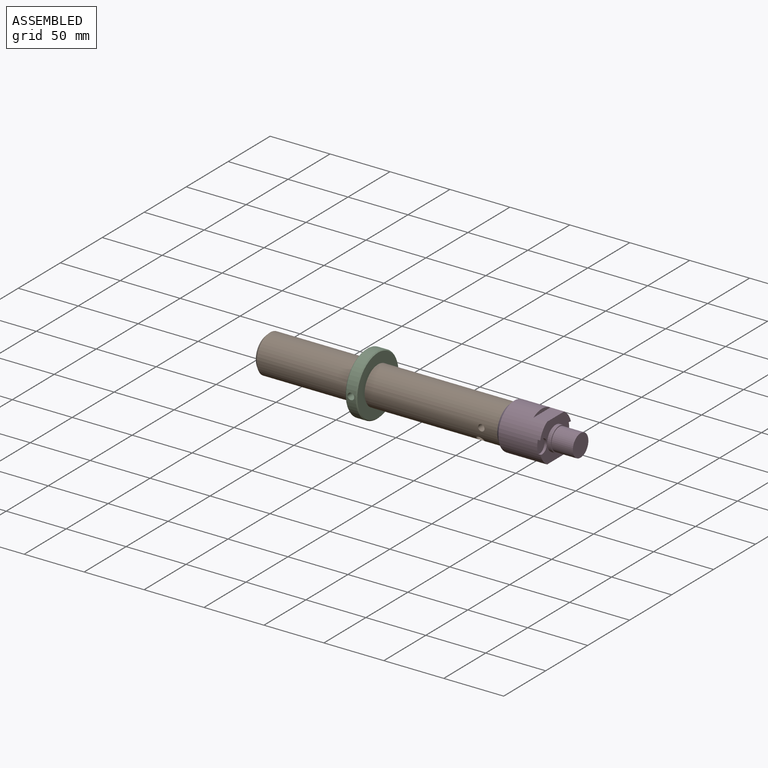
[diagram: assembled view]
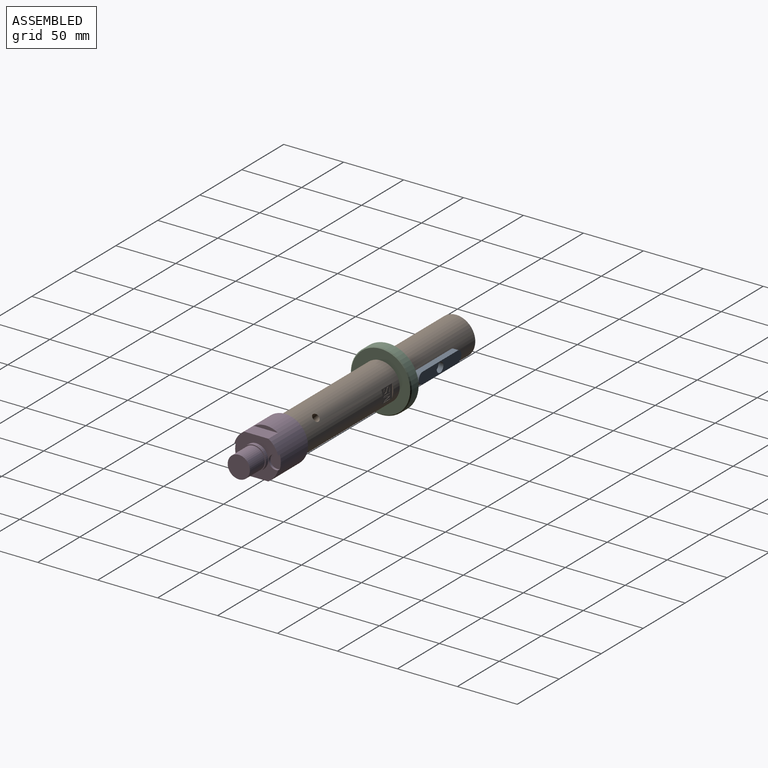
[diagram: assembled view, second angle]
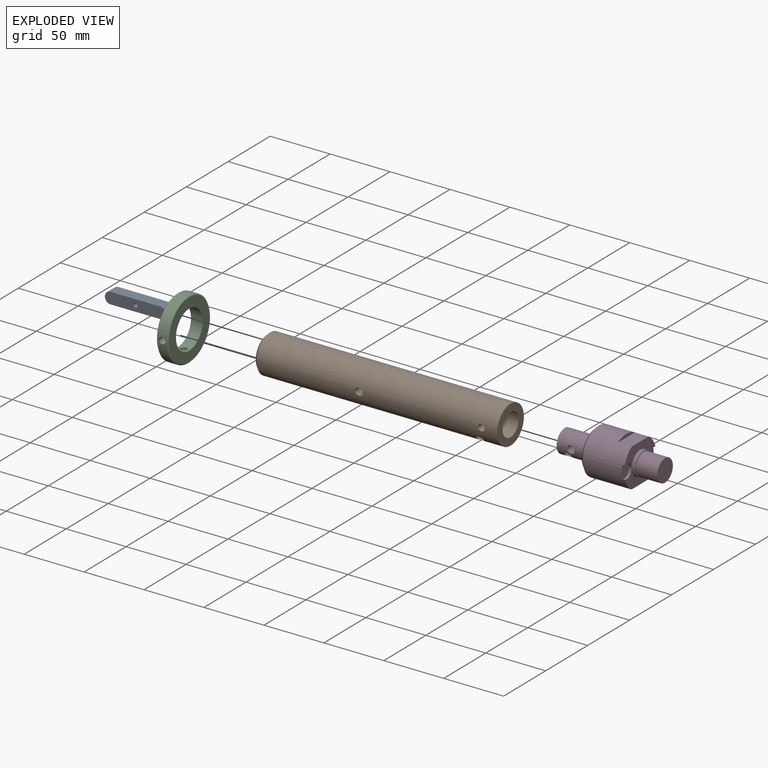
[diagram: exploded view]
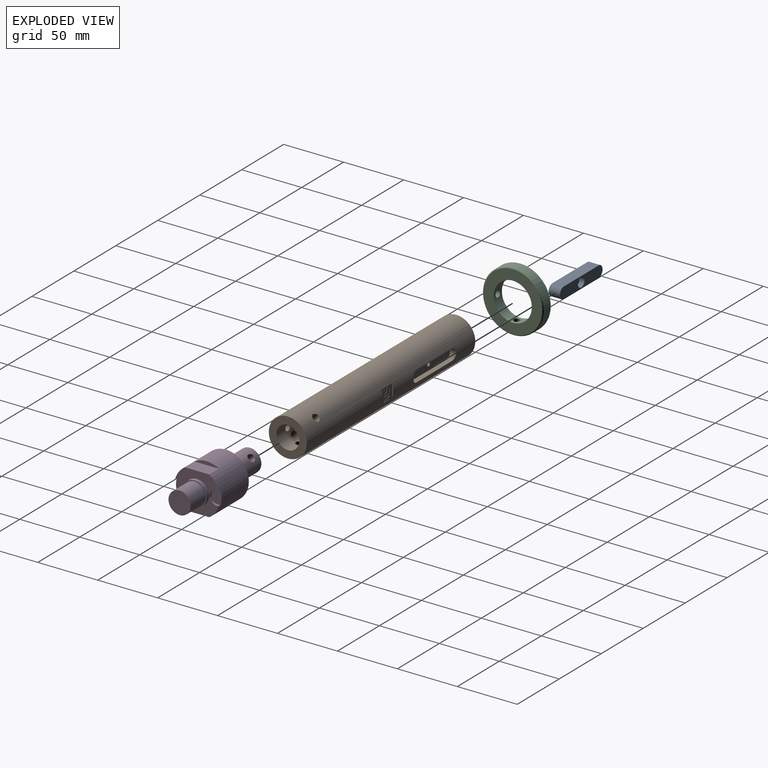
[diagram: exploded view, second angle]
ASSEMBLY  parts=4 mates=4
PART A: 9 faces, bbox 50.8x9.5x9.5 mm
  f0: plane 42.57x9.49mm, normal (0,1,0), area 403.8mm2, adj f1,f3,f4,f5
  f1: cylinder r=4.78mm len=9.49mm, axis (0,0,-1), area 129.9mm2, adj f0,f2,f4,f5
  f2: plane 42.57x9.49mm, normal (0,-1,0), area 403.8mm2, adj f1,f3,f4,f5
  f3: cylinder r=4.78mm len=9.49mm, axis (0,0,-1), area 129.9mm2, adj f0,f2,f4,f5
  f4: plane 50.8x9.47mm, normal (0,0,1), area 453.1mm2, adj f0,f1,f2,f3,f6
  f5: plane 50.8x9.47mm, normal (0,0,-1), area 413mm2, adj f0,f1,f2,f3,f8
  f6: cylinder r=1.73mm len=5.32mm, axis (0,0,-1), area 57.7mm2, adj f4,f7
  f7: plane 7.94x7.94mm, normal (0,0,-1), area 40.1mm2, adj f6,f8
  f8: cylinder r=3.97mm len=7.94mm, axis (0,0,-1), area 103.9mm2, adj f5,f7
PART B: 64 faces, bbox 203.2x31.8x31.8 mm
  f0: cylinder r=15.88mm len=200.66mm, axis (-1,0,0), area 19227.2mm2, adj f2,f3,f5,f6,f7,f8,f11,f12
  f1: cylinder r=9.53mm len=25.4mm, axis (1,0,0), area 1409.6mm2, adj f3,f10,f54,f55,f60,f61
  f2: plane 12.7x11.18mm, normal (0,1,0), area 105.7mm2, adj f0,f11,f12,f13,f14,f15,f16,f17
  f3: plane 31.75x31.75mm, normal (1,0,0), area 506.7mm2, adj f0,f1
  f4: plane 26.67x26.67mm, normal (-1,0,0), area 558.6mm2, adj f53
  f5: plane 42.57x4.36mm, normal (0,0,-1), area 185.5mm2, adj f0,f6,f8,f9
  f6: cylinder r=4.78mm len=9.47mm, axis (0,1,0), area 65mm2, adj f0,f5,f7,f9
  f7: plane 42.57x4.36mm, normal (0,0,1), area 185.5mm2, adj f0,f6,f8,f9
  f8: cylinder r=4.78mm len=9.47mm, axis (0,1,0), area 65mm2, adj f0,f5,f7,f9
  f9: plane 50.8x9.47mm, normal (0,1,0), area 453.1mm2, adj f5,f6,f7,f8,f63
  f10: plane 19.05x19.05mm, normal (1,0,0), area 285mm2, adj f1
  f11: plane 11.18x1.02mm, normal (-1,0,0), area 7.6mm2, adj f0,f2
  f12: plane 11.18x1.02mm, normal (1,0,0), area 7.6mm2, adj f0,f2
  f13: plane 0.92x0.25mm, normal (0,0,1), area 0.2mm2, adj f2,f14,f32,f33
  f14: extruded ~2.14x0.36mm, area 0.6mm2, adj f2,f13,f15,f33
  f15: extruded ~2.03x0.57mm, area 0.5mm2, adj f2,f14,f16,f33
  f16: extruded ~1.56x0.72mm, area 0.5mm2, adj f2,f15,f17,f33
  f17: extruded ~1.24x0.43mm, area 0.3mm2, adj f2,f16,f18,f33
  f18: extruded ~1.7x0.94mm, area 0.5mm2, adj f2,f17,f19,f33
  f19: extruded ~1.4x0.69mm, area 0.4mm2, adj f2,f18,f20,f33
  f20: extruded ~0.85x0.34mm, area 0.2mm2, adj f2,f19,f21,f33
  f21: extruded ~1.51x1.08mm, area 0.5mm2, adj f2,f20,f22,f33
  f22: extruded ~1.86x0.4mm, area 0.5mm2, adj f2,f21,f23,f33
  f23: plane 0.85x0.33mm, normal (0.36,0,-0.93), area 0.2mm2, adj f2,f22,f24,f33
  f24: extruded ~2.15x0.4mm, area 0.6mm2, adj f2,f23,f25,f33
  f25: extruded ~1.82x0.51mm, area 0.5mm2, adj f2,f24,f26,f33
  f26: extruded ~1.41x0.66mm, area 0.4mm2, adj f2,f25,f27,f33
  f27: extruded ~1.36x0.47mm, area 0.4mm2, adj f2,f26,f28,f33
  f28: extruded ~1.54x0.9mm, area 0.5mm2, adj f2,f27,f29,f33
  f29: extruded ~1.48x0.69mm, area 0.4mm2, adj f2,f28,f30,f33
  f30: extruded ~0.83x0.36mm, area 0.2mm2, adj f2,f29,f31,f33
  f31: extruded ~1.81x1.24mm, area 0.6mm2, adj f2,f30,f32,f33
  f32: extruded ~2.14x0.44mm, area 0.6mm2, adj f2,f13,f31,f33
  f33: plane 7.77x4.89mm, normal (0,1,0), area 14.4mm2, adj f13,f14,f15,f16,f17,f18,f19,f20
  f34: plane 0.8x0.25mm, normal (1,0,0), area 0.2mm2, adj f2,f35,f51,f52
  f35: plane 6.61x1.44mm, normal (0.21,0,-0.98), area 1.7mm2, adj f2,f34,f36,f52
  f36: plane 0.25x0.04mm, normal (1,0,0), area 0mm2, adj f2,f35,f37,f52
  f37: extruded ~2.1x0.25mm, area 0.5mm2, adj f2,f36,f38,f52
  f38: plane 4.52x0.25mm, normal (0,0,1), area 1.1mm2, adj f2,f37,f39,f52
  f39: plane 0.78x0.25mm, normal (1,0,0), area 0.2mm2, adj f2,f38,f40,f52
  f40: plane 7.56x0.25mm, normal (0,0,-1), area 1.9mm2, adj f2,f39,f41,f52
  f41: plane 1.28x0.25mm, normal (-1,0,0), area 0.3mm2, adj f2,f40,f42,f52
  f42: plane 6.16x1.28mm, normal (-0.2,0,0.98), area 1.6mm2, adj f2,f41,f43,f52
  f43: plane 0.25x0.03mm, normal (-1,0,0), area 0mm2, adj f2,f42,f44,f52
  f44: plane 6.16x1.29mm, normal (-0.21,0,-0.98), area 1.6mm2, adj f2,f43,f45,f52
  f45: plane 1.3x0.25mm, normal (-1,0,0), area 0.3mm2, adj f2,f44,f46,f52
  f46: plane 7.56x0.25mm, normal (0,0,1), area 1.9mm2, adj f2,f45,f47,f52
  f47: plane 0.79x0.25mm, normal (1,0,0), area 0.2mm2, adj f2,f46,f48,f52
  f48: plane 4.58x0.25mm, normal (0,0,-1), area 1.2mm2, adj f2,f47,f49,f52
  f49: extruded ~2.02x0.25mm, area 0.5mm2, adj f2,f48,f50,f52
  f50: plane 0.25x0.04mm, normal (1,0,0), area 0mm2, adj f2,f49,f51,f52
  f51: plane 6.6x1.46mm, normal (0.22,0,0.98), area 1.7mm2, adj f2,f34,f50,f52
  f52: plane 7.56x5.18mm, normal (0,1,0), area 21.9mm2, adj f34,f35,f36,f37,f38,f39,f40,f41
  f53: cone r=15.88mm half-angle=45deg, axis (1,0,0), area 329.6mm2, adj f0,f4
  f54: cylinder r=2.71mm len=6.74mm, axis (0,-1,0), area 109.3mm2, adj f0,f1
  f55: cylinder r=2.71mm len=6.74mm, axis (0,0,-1), area 109.3mm2, adj f0,f1
  f56: cylinder r=3.17mm len=6.35mm, axis (0,0,-1), area 53.9mm2, adj f0,f57
  f57: cone r=0mm half-angle=59deg, axis (0,0,-1), area 36.9mm2, adj f56
  f58: cylinder r=3.17mm len=6.35mm, axis (0,-1,0), area 53.9mm2, adj f0,f59
  f59: cone r=0mm half-angle=59deg, axis (0,-1,0), area 36.9mm2, adj f58
  f60: cylinder r=3.17mm len=9.37mm, axis (0,-0.71,-0.71), area 128.9mm2, adj f0,f1
  f61: cylinder r=3.17mm len=9.37mm, axis (0,-0.71,-0.71), area 128.9mm2, adj f0,f1
  f62: cone r=0mm half-angle=59deg, axis (0,1,0), area 10.9mm2, adj f63
  f63: cylinder r=1.73mm len=11.15mm, axis (0,1,0), area 121mm2, adj f9,f62
PART C: 8 faces, bbox 9.7x50.8x50.8 mm
  f0: cylinder r=15.88mm len=31.75mm, axis (-1,0,0), area 917.7mm2, adj f2,f3,f6,f7
  f1: cylinder r=25.4mm len=50.8mm, axis (-1,0,0), area 1252.3mm2, adj f4,f5,f6,f7
  f2: plane 49.28x49.28mm, normal (1,0,0), area 1115.3mm2, adj f0,f4
  f3: plane 49.28x49.28mm, normal (-1,0,0), area 1115.3mm2, adj f0,f5
  f4: cone r=24.64mm half-angle=45deg, axis (-1,0,0), area 169.4mm2, adj f1,f2
  f5: cone r=25.4mm half-angle=45deg, axis (1,0,0), area 169.4mm2, adj f1,f3
  f6: cylinder r=2.78mm len=9.77mm, axis (0,0,1), area 167.1mm2, adj f0,f1
  f7: cylinder r=2.55mm len=9.73mm, axis (0,-1,0), area 153.4mm2, adj f0,f1
PART D: 23 faces, bbox 38.1x83.8x38.1 mm
  f0: cylinder r=9.53mm len=25.4mm, axis (0,-1,0), area 1391.6mm2, adj f15,f17,f18,f20,f22
  f1: plane 11.68x8.66mm, normal (0,-1,0), area 82.5mm2, adj f4,f8
  f2: plane 11.68x8.66mm, normal (0,-1,0), area 82.6mm2, adj f4,f9
  f3: plane 20.32x2.94mm, normal (0,-1,0), area 40.4mm2, adj f4,f7
  f4: cylinder r=19.05mm len=38.1mm, axis (0,1,0), area 3584.4mm2, adj f1,f2,f3,f5,f6,f7,f8,f9
  f5: plane 20.32x2.94mm, normal (0,-1,0), area 40.4mm2, adj f4,f6
  f6: plane 20.32x11.43mm, normal (-1,0,0), area 232.3mm2, adj f4,f5,f10
  f7: plane 20.32x11.43mm, normal (1,0,0), area 232.3mm2, adj f3,f4,f10
  f8: cylinder r=5.84mm len=11.68mm, axis (0,1,0), area 45.6mm2, adj f1,f4,f10
  f9: cylinder r=5.84mm len=11.68mm, axis (0,1,0), area 45.6mm2, adj f2,f4,f10
  f10: plane 36.58x32.23mm, normal (0,-1,0), area 577.9mm2, adj f4,f6,f7,f8,f9,f11
  f11: cylinder r=10.03mm len=20.07mm, axis (0,1,0), area 192.1mm2, adj f10,f12
  f12: plane 20.07x20.07mm, normal (0,-1,0), area 46.2mm2, adj f11,f13
  f13: cylinder r=9.27mm len=18.54mm, axis (0,1,0), area 1035.7mm2, adj f12,f14
  f14: plane 18.54x18.54mm, normal (0,-1,0), area 270mm2, adj f13
  f15: plane 31.75x31.75mm, normal (0,1,0), area 506.7mm2, adj f0,f16
  f16: cone r=23.49mm half-angle=45deg, axis (0,-1,0), area 492.7mm2, adj f4,f15
  f17: plane 19.05x19.05mm, normal (0,1,0), area 285mm2, adj f0
  f18: cylinder r=3.17mm len=6.35mm, axis (0,0,1), area 56.1mm2, adj f0,f19
  f19: cone r=0mm half-angle=59deg, axis (0,0,1), area 36.9mm2, adj f18
  f20: cylinder r=3.17mm len=6.35mm, axis (-1,0,0), area 56.1mm2, adj f0,f21
  f21: cone r=0mm half-angle=59deg, axis (-1,0,0), area 36.9mm2, adj f20
  f22: cylinder r=3.17mm len=17.96mm, axis (-0.71,0,0.71), area 369.2mm2, adj f0
PLACE A rot(axis=(1,0,0),90deg) t=(-14.03,30.73,-17.62)mm
PLACE B t=(-64.83,10.45,-17.62)mm
PLACE C rot(axis=(1,0,0),90deg) t=(18.1,10.45,-17.62)mm
PLACE D rot(axis=(0.58,-0.58,0.58),120deg) t=(145.99,10.45,-17.62)mm
MATE cylindrical C.f0 <-> B.f0  axis (1,0,0) through (27.75,10.45,-17.62)mm
MATE fastened A.f1 <-> B.f6  axis (0,-1,0) through (-34.65,21.24,-17.62)mm
MATE planar D.f4 <-> B.f0  axis (-1,0,0) through (138.37,10.45,-17.62)mm
MATE cylindrical D.f0 <-> B.f1  axis (-1,0,0) through (112.97,10.45,-17.62)mm
